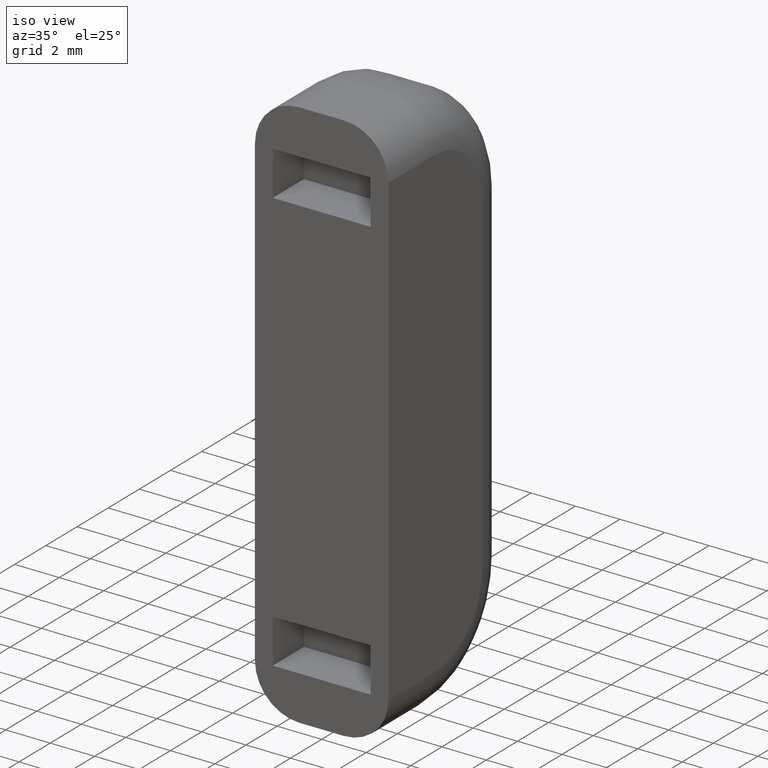
[diagram: clean part render]
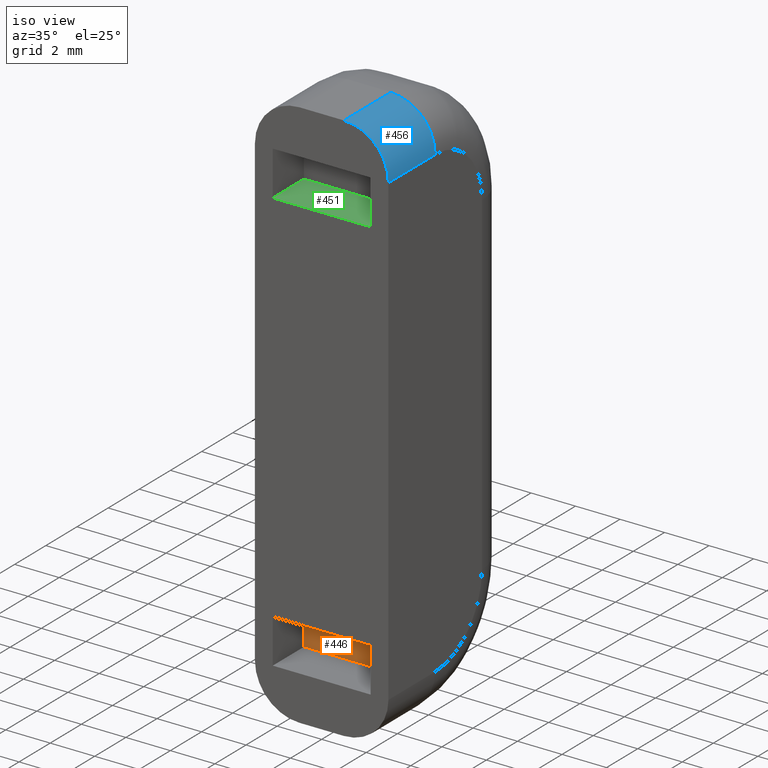
[diagram: same view with three faces highlighted in distinct colors, each labeled with its STEP entity id]
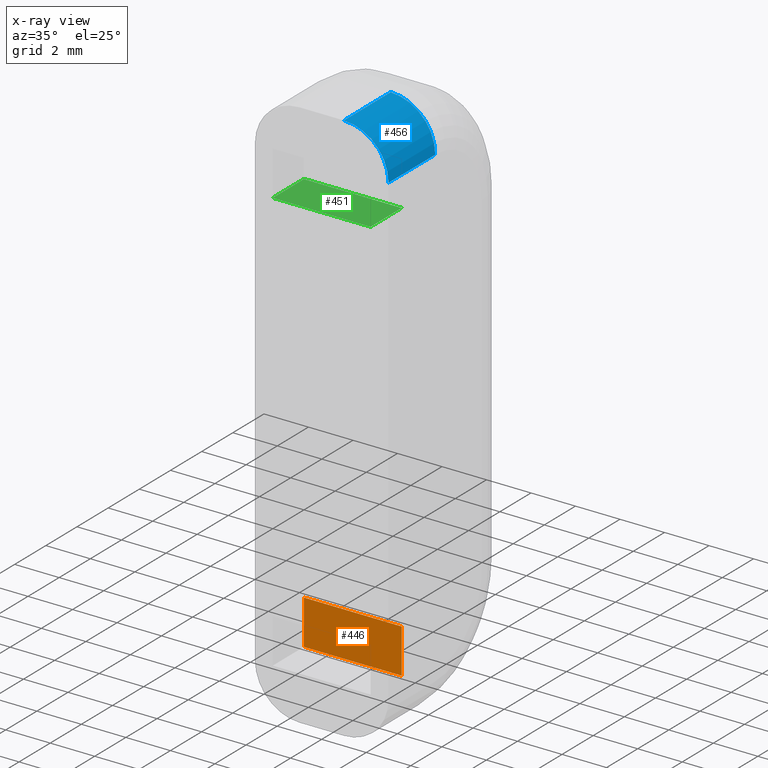
[diagram: x-ray of the same camera — body ghosted, the three highlighted faces saturated]
A machine part, iso view with three faces highlighted in distinct colors.
The next image is the same camera in x-ray (body ghosted, the three faces saturated) — at least one of them is partly hidden behind the body in this view.
Their STEP definitions:

[orange] entity #446 — the highlighted planar face has unit normal (0, 1, 0).
#52=FACE_OUTER_BOUND('',#80,.T.);
#80=EDGE_LOOP('',(#311,#312,#313,#314));
#107=LINE('',#688,#151);
#115=LINE('',#705,#159);
#118=LINE('',#711,#162);
#119=LINE('',#712,#163);
#151=VECTOR('',#546,10.);
#159=VECTOR('',#558,10.);
#162=VECTOR('',#563,10.);
#163=VECTOR('',#564,10.);
#195=VERTEX_POINT('',#686);
#196=VERTEX_POINT('',#687);
#203=VERTEX_POINT('',#704);
#205=VERTEX_POINT('',#710);
#235=EDGE_CURVE('',#195,#196,#107,.T.);
#243=EDGE_CURVE('',#195,#203,#115,.T.);
#246=EDGE_CURVE('',#196,#205,#118,.T.);
#247=EDGE_CURVE('',#205,#203,#119,.T.);
#311=ORIENTED_EDGE('',*,*,#235,.T.);
#312=ORIENTED_EDGE('',*,*,#246,.T.);
#313=ORIENTED_EDGE('',*,*,#247,.T.);
#314=ORIENTED_EDGE('',*,*,#243,.F.);
#430=PLANE('',#497);
#446=ADVANCED_FACE('',(#52),#430,.F.);
#497=AXIS2_PLACEMENT_3D('',#709,#561,#562);
#546=DIRECTION('',(0.,0.,-1.));
#558=DIRECTION('',(1.,0.,0.));
#561=DIRECTION('center_axis',(0.,1.,0.));
#562=DIRECTION('ref_axis',(0.,0.,-1.));
#563=DIRECTION('',(1.,0.,0.));
#564=DIRECTION('',(0.,0.,1.));
#686=CARTESIAN_POINT('',(-2.2,2.,-21.));
#687=CARTESIAN_POINT('',(-2.2,2.,-23.));
#688=CARTESIAN_POINT('',(-2.2,2.,-21.5));
#704=CARTESIAN_POINT('',(2.2,2.,-21.));
#705=CARTESIAN_POINT('',(0.,2.,-21.));
#709=CARTESIAN_POINT('Origin',(0.,2.,-21.));
#710=CARTESIAN_POINT('',(2.2,2.,-23.));
#711=CARTESIAN_POINT('',(0.,2.,-23.));
#712=CARTESIAN_POINT('',(2.2,2.,-21.5));

[blue] entity #456 — the highlighted cylindrical surface (partial cylindrical patch) has radius 2 mm, axis along (0, 1, 0).
#19=CYLINDRICAL_SURFACE('',#515,2.);
#35=CIRCLE('',#513,2.);
#37=CIRCLE('',#516,2.);
#62=FACE_OUTER_BOUND('',#92,.T.);
#92=EDGE_LOOP('',(#367,#368,#369,#370));
#134=LINE('',#747,#178);
#141=LINE('',#775,#185);
#178=VECTOR('',#597,10.);
#185=VECTOR('',#624,10.);
#211=VERTEX_POINT('',#736);
#216=VERTEX_POINT('',#745);
#225=VERTEX_POINT('',#767);
#227=VERTEX_POINT('',#773);
#264=EDGE_CURVE('',#211,#216,#134,.T.);
#274=EDGE_CURVE('',#225,#211,#35,.T.);
#277=EDGE_CURVE('',#216,#227,#37,.T.);
#278=EDGE_CURVE('',#227,#225,#141,.T.);
#367=ORIENTED_EDGE('',*,*,#274,.T.);
#368=ORIENTED_EDGE('',*,*,#264,.T.);
#369=ORIENTED_EDGE('',*,*,#277,.T.);
#370=ORIENTED_EDGE('',*,*,#278,.T.);
#456=ADVANCED_FACE('',(#62),#19,.T.);
#513=AXIS2_PLACEMENT_3D('',#768,#615,#616);
#515=AXIS2_PLACEMENT_3D('',#772,#620,#621);
#516=AXIS2_PLACEMENT_3D('',#774,#622,#623);
#597=DIRECTION('',(5.55111512312577E-16,1.,0.));
#615=DIRECTION('center_axis',(-1.85037170770859E-16,1.,0.));
#616=DIRECTION('ref_axis',(0.707106781186548,-7.85046229341888E-16,0.707106781186548));
#620=DIRECTION('center_axis',(5.55111512312577E-16,1.,0.));
#621=DIRECTION('ref_axis',(0.707106781186548,-7.85046229341888E-16,0.707106781186548));
#622=DIRECTION('center_axis',(-5.55111512312578E-16,-1.,0.));
#623=DIRECTION('ref_axis',(1.,-5.55111512312578E-16,0.));
#624=DIRECTION('',(-5.55111512312577E-16,-1.,0.));
#736=CARTESIAN_POINT('',(3.,0.,-2.));
#745=CARTESIAN_POINT('',(3.,3.00000000000001,-2.));
#747=CARTESIAN_POINT('',(3.,6.00000000000001,-2.));
#767=CARTESIAN_POINT('',(1.,-3.70074341541719E-16,0.));
#768=CARTESIAN_POINT('Origin',(1.,1.11022302462516E-15,-2.));
#772=CARTESIAN_POINT('Origin',(1.,6.00000000000001,-2.));
#773=CARTESIAN_POINT('',(1.,3.00000000000001,0.));
#774=CARTESIAN_POINT('Origin',(1.,3.00000000000001,-2.));
#775=CARTESIAN_POINT('',(1.,6.00000000000001,0.));

[green] entity #451 — the highlighted planar face has unit normal (0, -0, -1).
#57=FACE_OUTER_BOUND('',#85,.T.);
#85=EDGE_LOOP('',(#331,#332,#333,#334));
#113=LINE('',#701,#157);
#126=LINE('',#727,#170);
#129=LINE('',#732,#173);
#130=LINE('',#733,#174);
#157=VECTOR('',#554,10.);
#170=VECTOR('',#577,10.);
#173=VECTOR('',#584,10.);
#174=VECTOR('',#585,10.);
#201=VERTEX_POINT('',#698);
#202=VERTEX_POINT('',#700);
#209=VERTEX_POINT('',#724);
#210=VERTEX_POINT('',#726);
#241=EDGE_CURVE('',#202,#201,#113,.T.);
#254=EDGE_CURVE('',#210,#209,#126,.T.);
#257=EDGE_CURVE('',#210,#201,#129,.T.);
#258=EDGE_CURVE('',#202,#209,#130,.T.);
#331=ORIENTED_EDGE('',*,*,#241,.T.);
#332=ORIENTED_EDGE('',*,*,#257,.F.);
#333=ORIENTED_EDGE('',*,*,#254,.T.);
#334=ORIENTED_EDGE('',*,*,#258,.F.);
#435=PLANE('',#502);
#451=ADVANCED_FACE('',(#57),#435,.F.);
#502=AXIS2_PLACEMENT_3D('',#731,#582,#583);
#554=DIRECTION('',(6.93889390390723E-16,-1.,6.38378239159465E-15));
#577=DIRECTION('',(6.93889390390723E-16,1.,-6.38378239159465E-15));
#582=DIRECTION('center_axis',(0.,-6.38378239159465E-15,-1.));
#583=DIRECTION('ref_axis',(0.,-1.,6.38378239159465E-15));
#584=DIRECTION('',(-1.,-1.85037170770859E-16,1.1812370325575E-30));
#585=DIRECTION('',(1.,0.,0.));
#698=CARTESIAN_POINT('',(-2.2,5.55111512312578E-16,-4.));
#700=CARTESIAN_POINT('',(-2.2,2.,-4.00000000000001));
#701=CARTESIAN_POINT('',(-2.2,1.5,-4.00000000000001));
#724=CARTESIAN_POINT('',(2.2,2.,-4.00000000000001));
#726=CARTESIAN_POINT('',(2.2,5.55111512312578E-16,-4.));
#727=CARTESIAN_POINT('',(2.2,1.5,-4.00000000000001));
#731=CARTESIAN_POINT('Origin',(0.,2.,-4.00000000000001));
#732=CARTESIAN_POINT('',(1.5,-2.77555756156289E-16,-4.));
#733=CARTESIAN_POINT('',(0.,2.,-4.00000000000001));